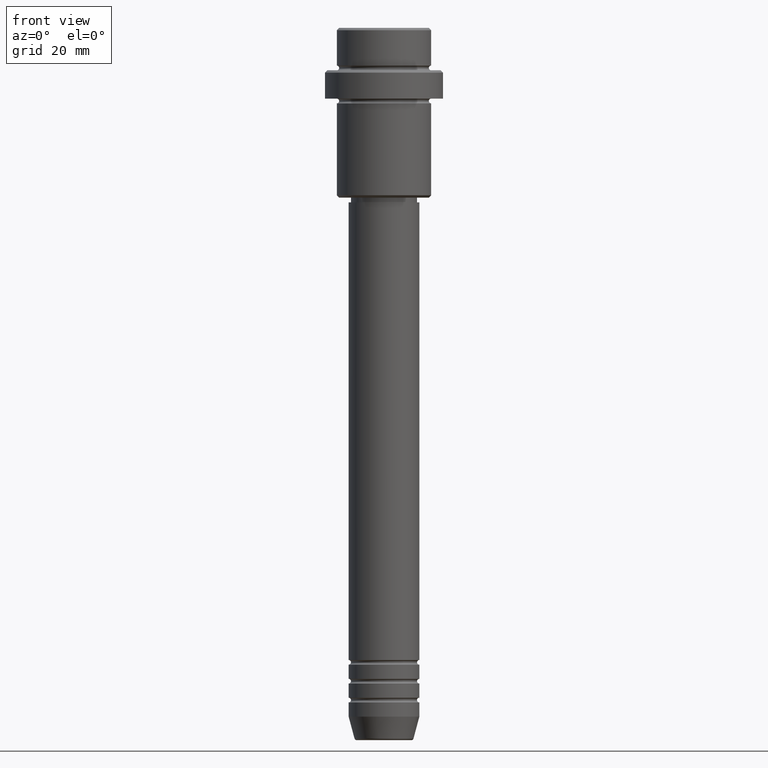
[diagram: clean part render]
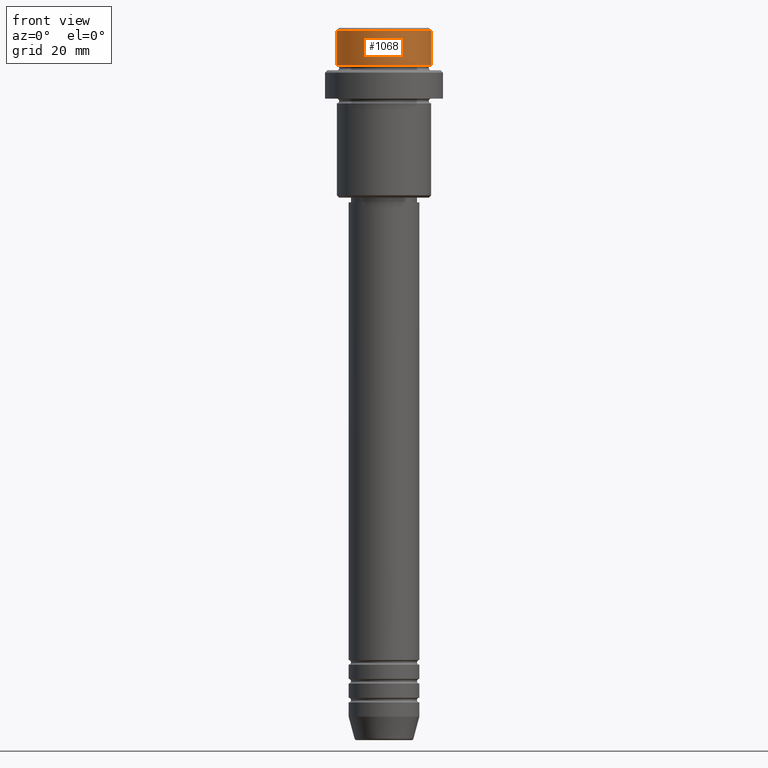
[diagram: same view with one face highlighted and labeled with its STEP entity id]
A machine part, front view. The second image highlights one B-rep face of the part: STEP entity #1068.
In plain terms, the highlighted cylindrical surface (partial cylindrical patch) has radius 10 mm, axis along (-0, -0, 1).
Its self-contained STEP definition (entity closure, byte-faithful):
#5 = DIRECTION ( 'NONE',  ( -0.000000000000000000, -0.000000000000000000, 1.000000000000000000 ) ) ;
#26 = DIRECTION ( 'NONE',  ( 0.000000000000000000, 0.000000000000000000, -1.000000000000000000 ) ) ;
#96 = CYLINDRICAL_SURFACE ( 'NONE', #1393, 9.999999999999998224 ) ;
#124 = CARTESIAN_POINT ( 'NONE',  ( 0.000000000000000000, 0.000000000000000000, 0.000000000000000000 ) ) ;
#206 = LINE ( 'NONE', #883, #1212 ) ;
#218 = ORIENTED_EDGE ( 'NONE', *, *, #548, .F. ) ;
#244 = DIRECTION ( 'NONE',  ( -0.000000000000000000, -0.000000000000000000, 1.000000000000000000 ) ) ;
#254 = ORIENTED_EDGE ( 'NONE', *, *, #765, .T. ) ;
#290 = DIRECTION ( 'NONE',  ( -0.000000000000000000, -0.000000000000000000, 1.000000000000000000 ) ) ;
#321 = ORIENTED_EDGE ( 'NONE', *, *, #1261, .T. ) ;
#410 = VERTEX_POINT ( 'NONE', #419 ) ;
#419 = CARTESIAN_POINT ( 'NONE',  ( 9.999999999999998224, 0.000000000000000000, -7.999999999999998224 ) ) ;
#456 = CIRCLE ( 'NONE', #554, 9.999999999999998224 ) ;
#470 = VERTEX_POINT ( 'NONE', #519 ) ;
#481 = DIRECTION ( 'NONE',  ( 1.000000000000000000, 0.000000000000000000, 0.000000000000000000 ) ) ;
#486 = CIRCLE ( 'NONE', #862, 9.999999999999998224 ) ;
#519 = CARTESIAN_POINT ( 'NONE',  ( 9.999999999999998224, 0.000000000000000000, -0.4999999999999970024 ) ) ;
#548 = EDGE_CURVE ( 'NONE', #967, #675, #206, .T. ) ;
#554 = AXIS2_PLACEMENT_3D ( 'NONE', #592, #5, #481 ) ;
#592 = CARTESIAN_POINT ( 'NONE',  ( 0.000000000000000000, 0.000000000000000000, -7.999999999999998224 ) ) ;
#596 = ORIENTED_EDGE ( 'NONE', *, *, #1361, .T. ) ;
#605 = CARTESIAN_POINT ( 'NONE',  ( 0.000000000000000000, 0.000000000000000000, -0.4999999999999970024 ) ) ;
#637 = CARTESIAN_POINT ( 'NONE',  ( 9.999999999999998224, 0.000000000000000000, 0.000000000000000000 ) ) ;
#662 = CARTESIAN_POINT ( 'NONE',  ( -9.999999999999998224, 1.224646799147353059E-15, -7.999999999999998224 ) ) ;
#668 = FACE_OUTER_BOUND ( 'NONE', #1386, .T. ) ;
#671 = DIRECTION ( 'NONE',  ( -0.000000000000000000, -0.000000000000000000, 1.000000000000000000 ) ) ;
#675 = VERTEX_POINT ( 'NONE', #1315 ) ;
#696 = VECTOR ( 'NONE', #290, 1000.000000000000000 ) ;
#698 = DIRECTION ( 'NONE',  ( 1.000000000000000000, 0.000000000000000000, 0.000000000000000000 ) ) ;
#765 = EDGE_CURVE ( 'NONE', #967, #410, #456, .T. ) ;
#862 = AXIS2_PLACEMENT_3D ( 'NONE', #605, #26, #917 ) ;
#883 = CARTESIAN_POINT ( 'NONE',  ( -9.999999999999998224, 1.224646799147353059E-15, 0.000000000000000000 ) ) ;
#917 = DIRECTION ( 'NONE',  ( 1.000000000000000000, 0.000000000000000000, 0.000000000000000000 ) ) ;
#967 = VERTEX_POINT ( 'NONE', #662 ) ;
#1068 = ADVANCED_FACE ( 'NONE', ( #668 ), #96, .T. ) ;
#1212 = VECTOR ( 'NONE', #671, 1000.000000000000000 ) ;
#1261 = EDGE_CURVE ( 'NONE', #410, #470, #1365, .T. ) ;
#1315 = CARTESIAN_POINT ( 'NONE',  ( -9.999999999999998224, 1.224646799147353059E-15, -0.4999999999999970024 ) ) ;
#1361 = EDGE_CURVE ( 'NONE', #470, #675, #486, .T. ) ;
#1365 = LINE ( 'NONE', #637, #696 ) ;
#1386 = EDGE_LOOP ( 'NONE', ( #218, #254, #321, #596 ) ) ;
#1393 = AXIS2_PLACEMENT_3D ( 'NONE', #124, #244, #698 ) ;